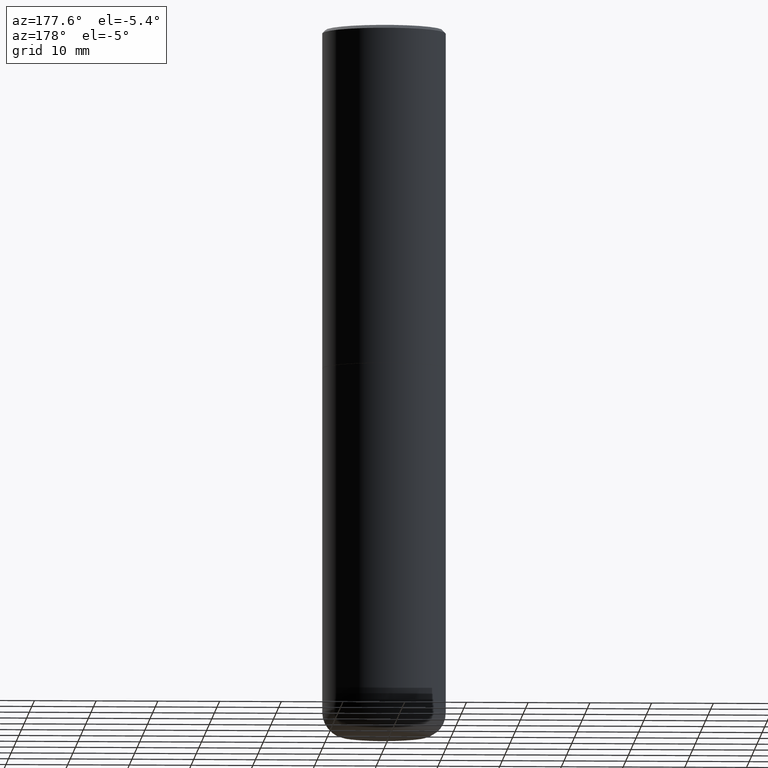
[diagram: clean part render]
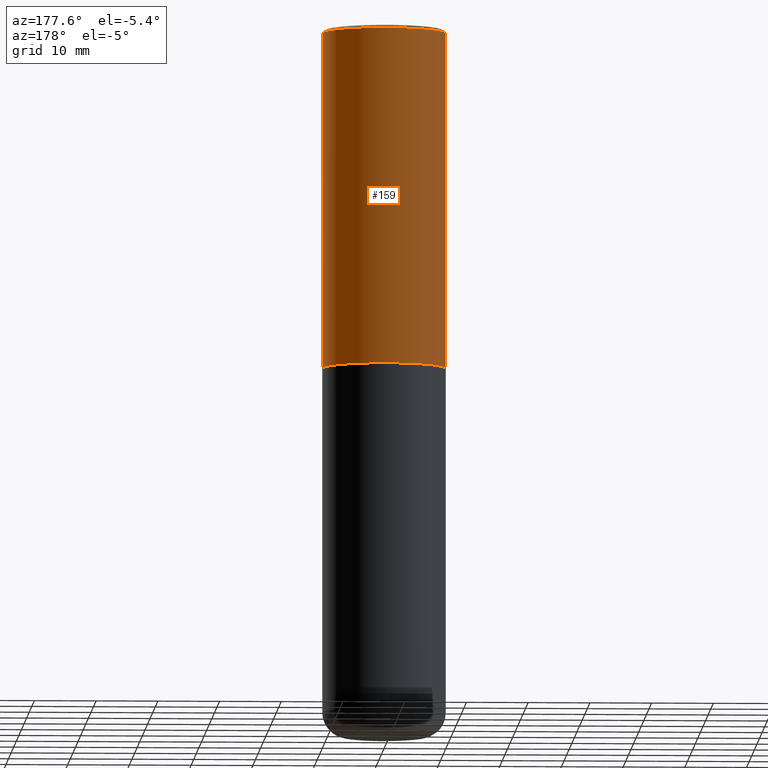
[diagram: same view with one face highlighted and labeled with its STEP entity id]
A machine part, auxiliary view. The second image highlights one B-rep face of the part: STEP entity #159.
In plain terms, the highlighted cylindrical surface (partial cylindrical patch) has radius 10 mm, axis along (-0, 0, 1).
Its self-contained STEP definition (entity closure, byte-faithful):
#2 = CARTESIAN_POINT ( 'NONE',  ( -0.3937000000000002164, 2.797406750687515970E-15, -1.936584745033357576E-29 ) ) ;
#4 = CARTESIAN_POINT ( 'NONE',  ( 0.3937000000000002164, -2.749192406205084794E-15, 1.919750796630861012E-29 ) ) ;
#15 = VECTOR ( 'NONE', #129, 39.37007874015748143 ) ;
#31 = EDGE_CURVE ( 'NONE', #207, #50, #99, .T. ) ;
#37 = AXIS2_PLACEMENT_3D ( 'NONE', #75, #199, #330 ) ;
#38 = DIRECTION ( 'NONE',  ( -2.445468806185136877E-29, 3.491481338843145188E-15, 1.000000000000000000 ) ) ;
#45 = AXIS2_PLACEMENT_3D ( 'NONE', #233, #266, #361 ) ;
#48 = ORIENTED_EDGE ( 'NONE', *, *, #104, .T. ) ;
#50 = VERTEX_POINT ( 'NONE', #136 ) ;
#75 = CARTESIAN_POINT ( 'NONE',  ( 5.292972684107107621E-29, -7.556962209792102838E-15, -2.164399999999999658 ) ) ;
#91 = VECTOR ( 'NONE', #38, 39.37007874015748143 ) ;
#96 = EDGE_CURVE ( 'NONE', #207, #375, #297, .T. ) ;
#99 = CIRCLE ( 'NONE', #37, 0.3937000000000002720 ) ;
#104 = EDGE_CURVE ( 'NONE', #50, #205, #358, .T. ) ;
#112 = EDGE_LOOP ( 'NONE', ( #281, #48, #146, #184 ) ) ;
#115 = DIRECTION ( 'NONE',  ( 1.000000000000000000, -6.982962677686266711E-15, 4.876176775795935793E-29 ) ) ;
#127 = FACE_OUTER_BOUND ( 'NONE', #112, .T. ) ;
#129 = DIRECTION ( 'NONE',  ( -2.445468806185136877E-29, 3.491481338843145188E-15, 1.000000000000000000 ) ) ;
#136 = CARTESIAN_POINT ( 'NONE',  ( -0.3937000000000002720, -1.015989167596965718E-15, -2.164399999999999658 ) ) ;
#146 = ORIENTED_EDGE ( 'NONE', *, *, #271, .F. ) ;
#148 = CARTESIAN_POINT ( 'NONE',  ( -0.3937000000000001054, 2.679362779428220707E-15, -0.02000000000000008715 ) ) ;
#159 = ADVANCED_FACE ( 'NONE', ( #127 ), #397, .T. ) ;
#171 = AXIS2_PLACEMENT_3D ( 'NONE', #206, #270, #115 ) ;
#184 = ORIENTED_EDGE ( 'NONE', *, *, #96, .F. ) ;
#199 = DIRECTION ( 'NONE',  ( -2.445468806185136597E-29, 3.491481338843145583E-15, 1.000000000000000000 ) ) ;
#205 = VERTEX_POINT ( 'NONE', #148 ) ;
#206 = CARTESIAN_POINT ( 'NONE',  ( 0.000000000000000000, 0.000000000000000000, 0.000000000000000000 ) ) ;
#207 = VERTEX_POINT ( 'NONE', #407 ) ;
#224 = CIRCLE ( 'NONE', #45, 0.3937000000000001054 ) ;
#233 = CARTESIAN_POINT ( 'NONE',  ( 4.890937612370294178E-31, -6.982962677686321191E-17, -0.02000000000000008715 ) ) ;
#266 = DIRECTION ( 'NONE',  ( -2.445468806185136597E-29, 3.491481338843145583E-15, 1.000000000000000000 ) ) ;
#270 = DIRECTION ( 'NONE',  ( -2.445468806185136597E-29, 3.491481338843145583E-15, 1.000000000000000000 ) ) ;
#271 = EDGE_CURVE ( 'NONE', #375, #205, #224, .T. ) ;
#281 = ORIENTED_EDGE ( 'NONE', *, *, #31, .T. ) ;
#289 = CARTESIAN_POINT ( 'NONE',  ( 0.3937000000000001054, -2.770807688499516128E-15, -0.02000000000000008715 ) ) ;
#297 = LINE ( 'NONE', #4, #15 ) ;
#330 = DIRECTION ( 'NONE',  ( 1.000000000000000000, -6.982962677686269077E-15, 0.000000000000000000 ) ) ;
#358 = LINE ( 'NONE', #2, #91 ) ;
#361 = DIRECTION ( 'NONE',  ( 1.000000000000000000, -6.982962677686266711E-15, 0.000000000000000000 ) ) ;
#375 = VERTEX_POINT ( 'NONE', #289 ) ;
#397 = CYLINDRICAL_SURFACE ( 'NONE', #171, 0.3937000000000002164 ) ;
#407 = CARTESIAN_POINT ( 'NONE',  ( 0.3937000000000002720, -1.030615461599718763E-14, -2.164399999999999658 ) ) ;